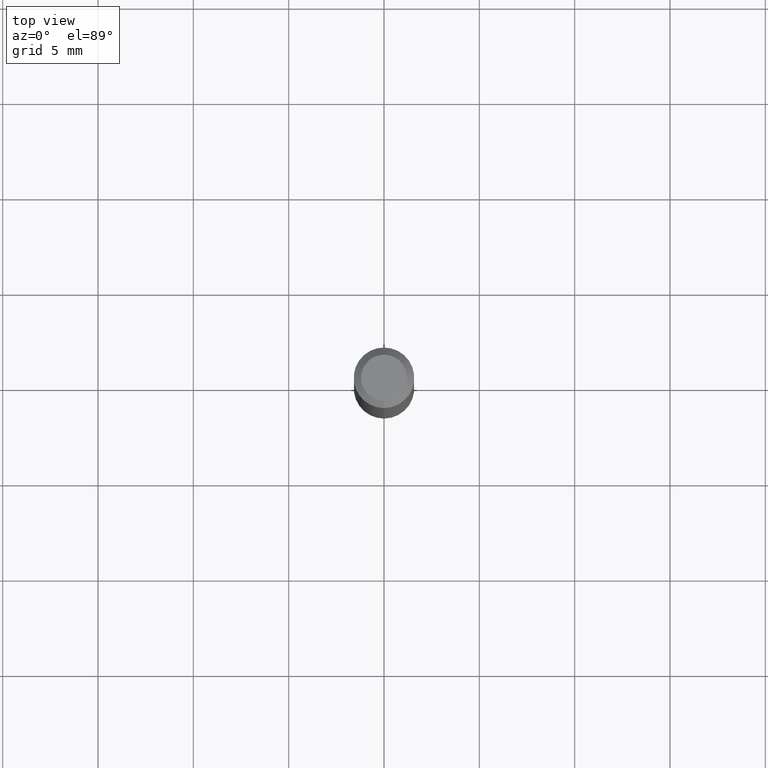
[diagram: clean part render]
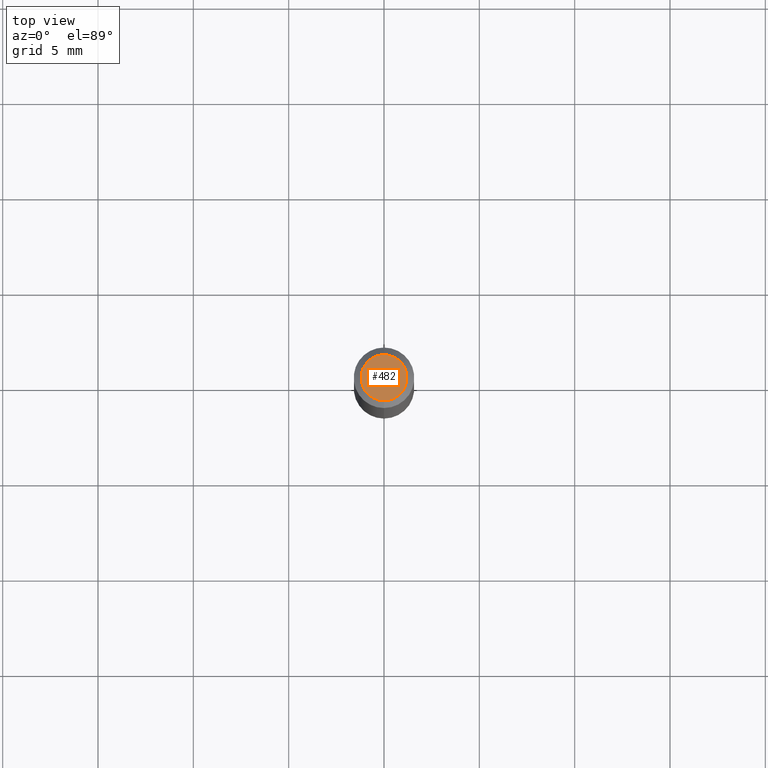
[diagram: same view with one face highlighted and labeled with its STEP entity id]
A machine part, top view. The second image highlights one B-rep face of the part: STEP entity #482.
In plain terms, the highlighted planar face has unit normal (0, -0, -1).
Its self-contained STEP definition (entity closure, byte-faithful):
#15 = AXIS2_PLACEMENT_3D ( 'NONE', #277, #82, #388 ) ;
#51 = CARTESIAN_POINT ( 'NONE',  ( -3.773273898774340269E-16, -0.04749999999999999362, 1.569842943950606882E-16 ) ) ;
#64 = VERTEX_POINT ( 'NONE', #51 ) ;
#82 = DIRECTION ( 'NONE',  ( 2.445474316170175487E-29, -3.491473448230960570E-15, -1.000000000000000000 ) ) ;
#106 = DIRECTION ( 'NONE',  ( -2.445474316170176047E-29, 3.491473448230960175E-15, 1.000000000000000000 ) ) ;
#126 = DIRECTION ( 'NONE',  ( -2.445474316170176047E-29, 3.491473448230960175E-15, 1.000000000000000000 ) ) ;
#164 = CARTESIAN_POINT ( 'NONE',  ( 2.166860056863068108E-46, -3.093687921620829248E-32, -8.860694395909901927E-18 ) ) ;
#175 = ORIENTED_EDGE ( 'NONE', *, *, #245, .T. ) ;
#205 = CIRCLE ( 'NONE', #487, 0.04749999999999999362 ) ;
#243 = DIRECTION ( 'NONE',  ( -6.982962677686266711E-15, -1.000000000000000000, 3.491473448230960175E-15 ) ) ;
#245 = EDGE_CURVE ( 'NONE', #404, #64, #205, .T. ) ;
#259 = DIRECTION ( 'NONE',  ( -6.982962677686266711E-15, -1.000000000000000000, 3.491473448230960175E-15 ) ) ;
#262 = AXIS2_PLACEMENT_3D ( 'NONE', #296, #106, #259 ) ;
#277 = CARTESIAN_POINT ( 'NONE',  ( 3.316907271900976096E-16, 0.04749999999999999362, -1.702753359889255758E-16 ) ) ;
#296 = CARTESIAN_POINT ( 'NONE',  ( 2.166860056863068108E-46, -3.093687921620829248E-32, -8.860694395909901927E-18 ) ) ;
#324 = EDGE_CURVE ( 'NONE', #64, #404, #361, .T. ) ;
#353 = EDGE_LOOP ( 'NONE', ( #175, #422 ) ) ;
#361 = CIRCLE ( 'NONE', #262, 0.04749999999999999362 ) ;
#384 = FACE_OUTER_BOUND ( 'NONE', #353, .T. ) ;
#388 = DIRECTION ( 'NONE',  ( 6.982962677686265922E-15, 1.000000000000000000, -3.491473448230960570E-15 ) ) ;
#404 = VERTEX_POINT ( 'NONE', #459 ) ;
#422 = ORIENTED_EDGE ( 'NONE', *, *, #324, .T. ) ;
#459 = CARTESIAN_POINT ( 'NONE',  ( 3.840629472727447874E-16, 0.04749999999999999362, -1.747056831868805136E-16 ) ) ;
#477 = PLANE ( 'NONE',  #15 ) ;
#482 = ADVANCED_FACE ( 'NONE', ( #384 ), #477, .F. ) ;
#487 = AXIS2_PLACEMENT_3D ( 'NONE', #164, #126, #243 ) ;